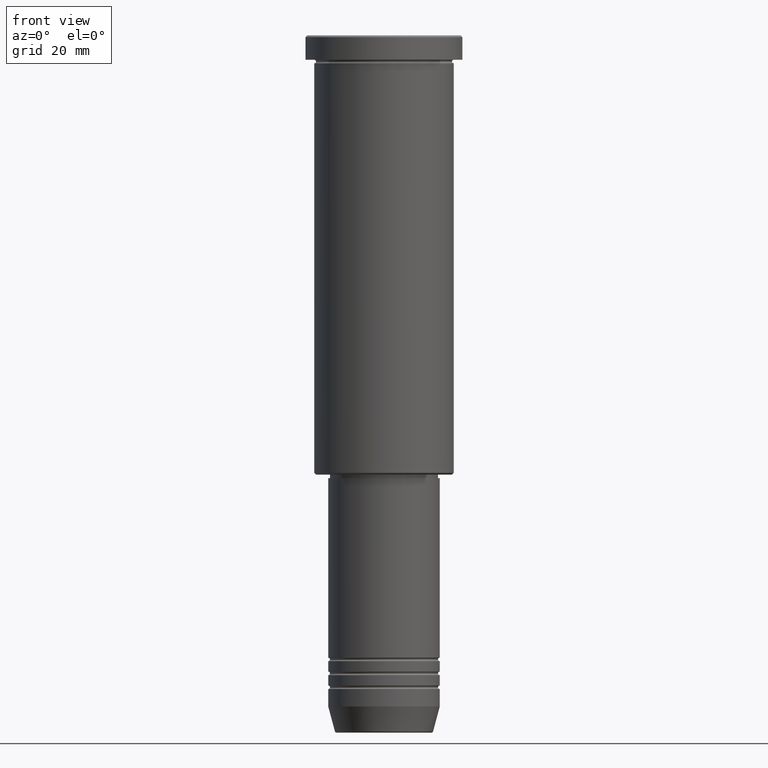
[diagram: clean part render]
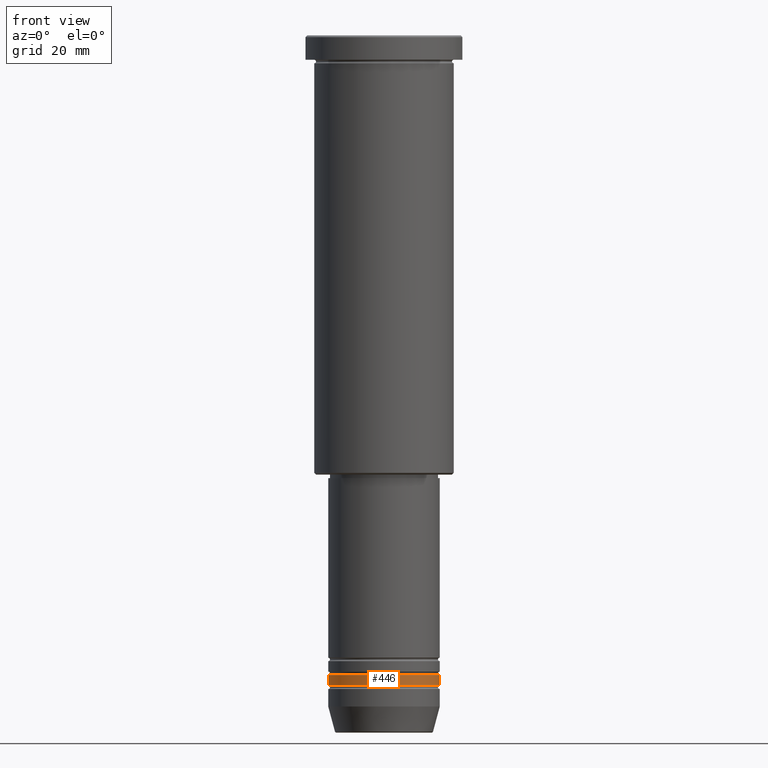
[diagram: same view with one face highlighted and labeled with its STEP entity id]
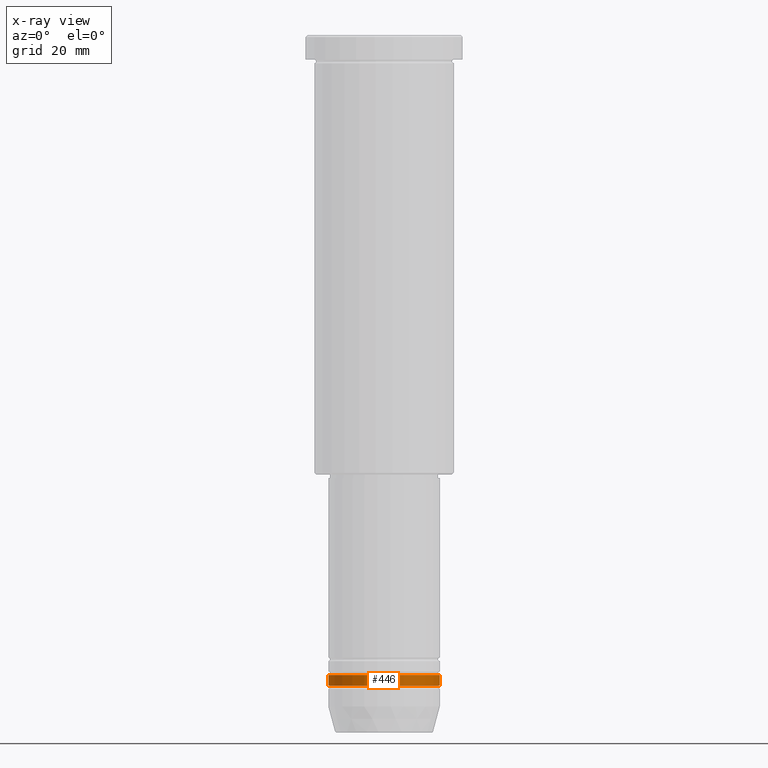
[diagram: x-ray of the same camera — body ghosted, the highlighted face saturated]
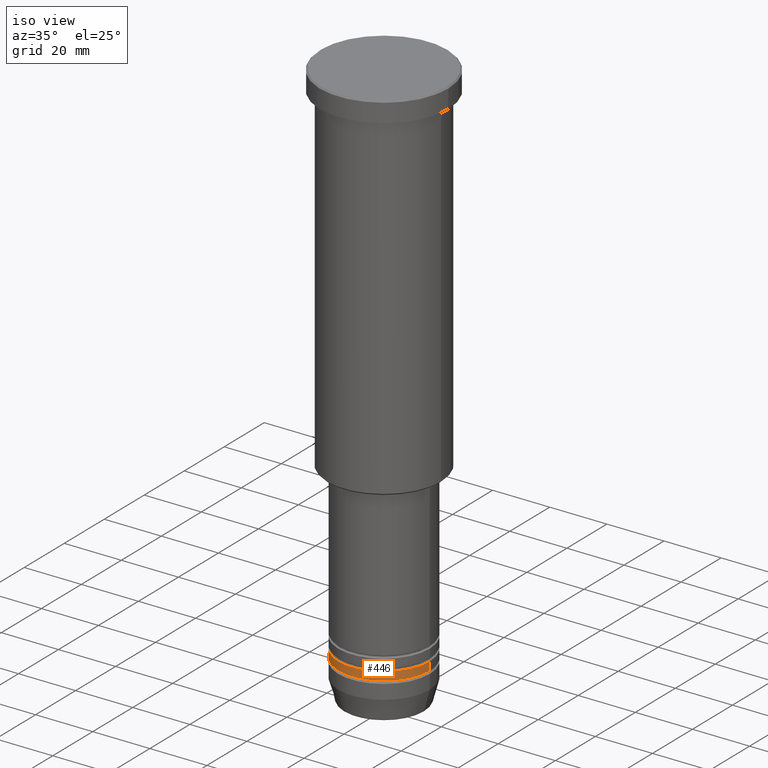
[diagram: same view with one face highlighted and labeled with its STEP entity id]
A machine part, front view. The second image highlights one B-rep face of the part: STEP entity #446.
The next image is the same camera in x-ray: the body ghosted, the highlighted face saturated — about 0% of this face is hidden behind the body in this view.
A second angle (iso view) of the same face is appended — the face is thin or edge-on in the first view.
In plain terms, the highlighted cylindrical surface (partial cylindrical patch) has radius 16 mm, axis along (-0, -0, 1).
Its self-contained STEP definition (entity closure, byte-faithful):
#40 = DIRECTION ( 'NONE',  ( -0.000000000000000000, -0.000000000000000000, 1.000000000000000000 ) ) ;
#51 = CARTESIAN_POINT ( 'NONE',  ( -16.00000000000000000, 1.959434878635765131E-15, -183.5000000000000284 ) ) ;
#92 = ORIENTED_EDGE ( 'NONE', *, *, #717, .T. ) ;
#153 = EDGE_CURVE ( 'NONE', #894, #873, #1045, .T. ) ;
#182 = DIRECTION ( 'NONE',  ( 1.000000000000000000, 0.000000000000000000, 0.000000000000000000 ) ) ;
#190 = DIRECTION ( 'NONE',  ( 1.000000000000000000, 0.000000000000000000, 0.000000000000000000 ) ) ;
#197 = DIRECTION ( 'NONE',  ( -0.000000000000000000, -0.000000000000000000, 1.000000000000000000 ) ) ;
#205 = DIRECTION ( 'NONE',  ( 1.000000000000000000, 0.000000000000000000, 0.000000000000000000 ) ) ;
#228 = CARTESIAN_POINT ( 'NONE',  ( 16.00000000000000000, 0.000000000000000000, 0.000000000000000000 ) ) ;
#244 = CARTESIAN_POINT ( 'NONE',  ( 16.00000000000000000, 0.000000000000000000, -183.5000000000000284 ) ) ;
#247 = CARTESIAN_POINT ( 'NONE',  ( -16.00000000000000000, 1.959434878635765131E-15, 0.000000000000000000 ) ) ;
#284 = FACE_OUTER_BOUND ( 'NONE', #1019, .T. ) ;
#333 = AXIS2_PLACEMENT_3D ( 'NONE', #1118, #40, #205 ) ;
#354 = CARTESIAN_POINT ( 'NONE',  ( 0.000000000000000000, 0.000000000000000000, -186.5000000000000000 ) ) ;
#360 = CARTESIAN_POINT ( 'NONE',  ( 0.000000000000000000, 0.000000000000000000, -183.5000000000000284 ) ) ;
#423 = CIRCLE ( 'NONE', #1166, 16.00000000000000000 ) ;
#446 = ADVANCED_FACE ( 'NONE', ( #284 ), #494, .T. ) ;
#494 = CYLINDRICAL_SURFACE ( 'NONE', #333, 16.00000000000000000 ) ;
#530 = ORIENTED_EDGE ( 'NONE', *, *, #986, .F. ) ;
#597 = VERTEX_POINT ( 'NONE', #966 ) ;
#653 = VERTEX_POINT ( 'NONE', #51 ) ;
#692 = EDGE_CURVE ( 'NONE', #597, #653, #802, .T. ) ;
#711 = DIRECTION ( 'NONE',  ( -0.000000000000000000, -0.000000000000000000, 1.000000000000000000 ) ) ;
#717 = EDGE_CURVE ( 'NONE', #597, #894, #793, .T. ) ;
#793 = CIRCLE ( 'NONE', #837, 16.00000000000000000 ) ;
#802 = LINE ( 'NONE', #247, #1127 ) ;
#837 = AXIS2_PLACEMENT_3D ( 'NONE', #354, #1088, #182 ) ;
#867 = CARTESIAN_POINT ( 'NONE',  ( 16.00000000000000000, 0.000000000000000000, -186.5000000000000000 ) ) ;
#873 = VERTEX_POINT ( 'NONE', #244 ) ;
#894 = VERTEX_POINT ( 'NONE', #867 ) ;
#966 = CARTESIAN_POINT ( 'NONE',  ( -16.00000000000000000, 1.959434878635765131E-15, -186.5000000000000000 ) ) ;
#982 = ORIENTED_EDGE ( 'NONE', *, *, #153, .T. ) ;
#986 = EDGE_CURVE ( 'NONE', #653, #873, #423, .T. ) ;
#1019 = EDGE_LOOP ( 'NONE', ( #1055, #92, #982, #530 ) ) ;
#1034 = VECTOR ( 'NONE', #1154, 1000.000000000000000 ) ;
#1045 = LINE ( 'NONE', #228, #1034 ) ;
#1055 = ORIENTED_EDGE ( 'NONE', *, *, #692, .F. ) ;
#1088 = DIRECTION ( 'NONE',  ( -0.000000000000000000, -0.000000000000000000, 1.000000000000000000 ) ) ;
#1118 = CARTESIAN_POINT ( 'NONE',  ( 0.000000000000000000, 0.000000000000000000, 0.000000000000000000 ) ) ;
#1127 = VECTOR ( 'NONE', #711, 1000.000000000000000 ) ;
#1154 = DIRECTION ( 'NONE',  ( -0.000000000000000000, -0.000000000000000000, 1.000000000000000000 ) ) ;
#1166 = AXIS2_PLACEMENT_3D ( 'NONE', #360, #197, #190 ) ;